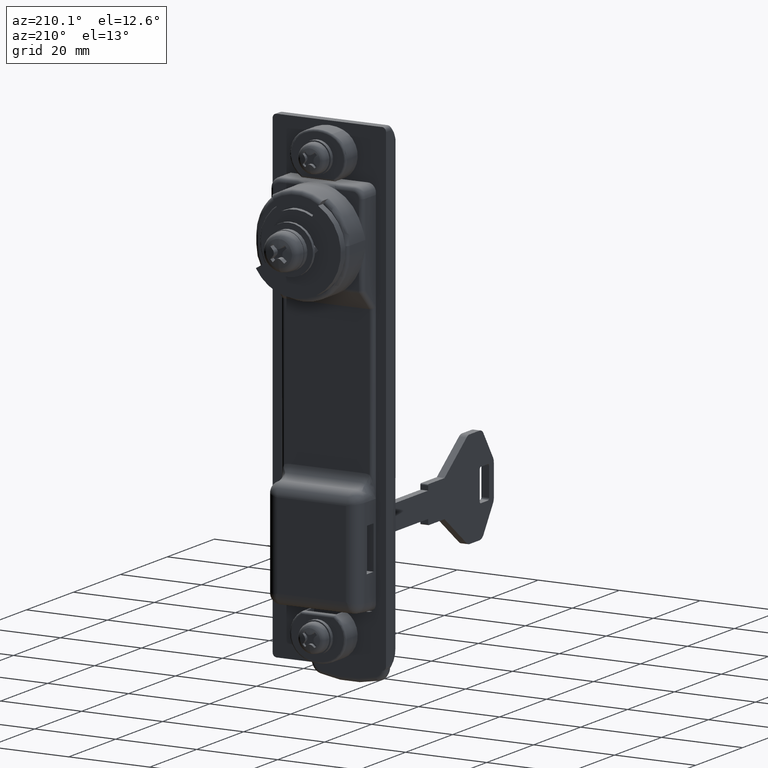
[diagram: clean part render]
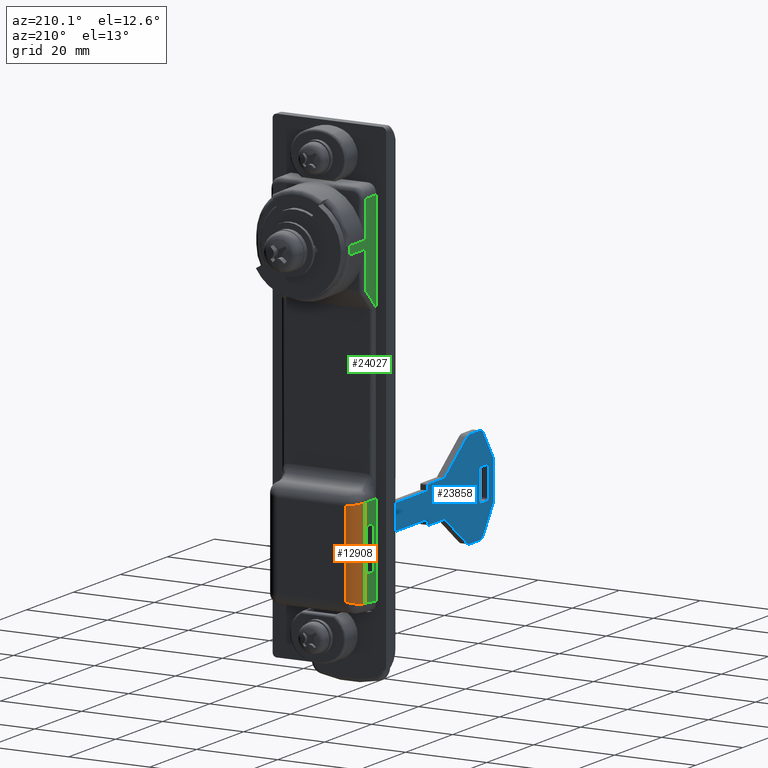
[diagram: same view with three faces highlighted in distinct colors, each labeled with its STEP entity id]
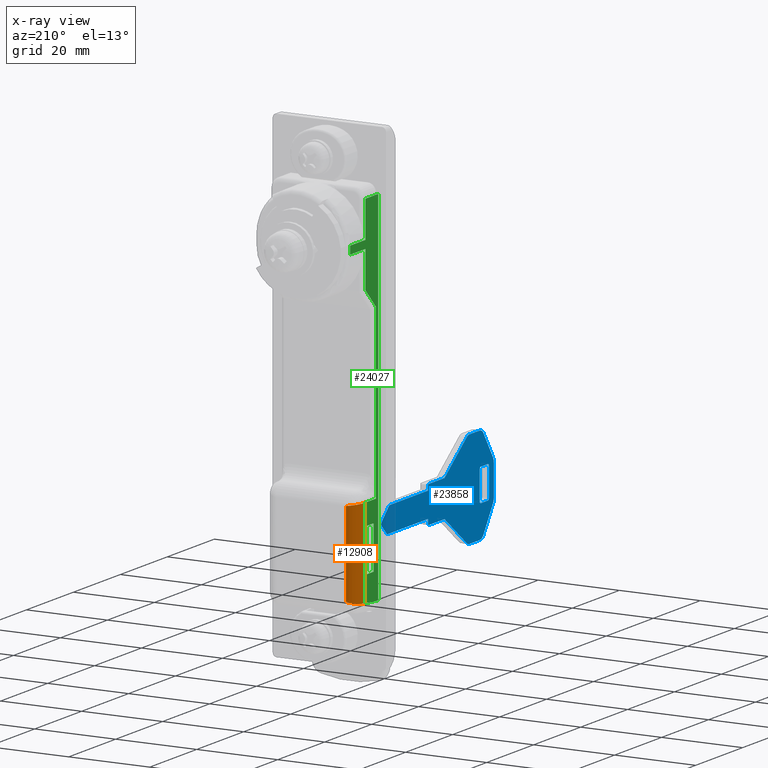
[diagram: x-ray of the same camera — body ghosted, the three highlighted faces saturated]
A machine part, auxiliary view with three faces highlighted in distinct colors.
The next image is the same camera in x-ray (body ghosted, the three faces saturated) — at least one of them is partly hidden behind the body in this view.
Their STEP definitions:

[orange] entity #12908 — the highlighted cylindrical surface (edge-blend (fillet) strip) has radius 3 mm, axis along (0, 0, 1).
#1260 = CARTESIAN_POINT ( 'NONE',  ( -11.89999999999919900, 11.50000000000000000, -78.50834350564979000 ) ) ;
#1261 = DIRECTION ( 'NONE',  ( 0.0000000000000000000, 0.0000000000000000000, -1.000000000000000000 ) ) ;
#1262 = VECTOR ( 'NONE', #1261, 1000.000000000000000 ) ;
#1263 = CARTESIAN_POINT ( 'NONE',  ( -11.89999999999919900, 11.50000000000000000, -78.11376319190559100 ) ) ;
#1264 = LINE ( 'NONE', #1263, #1262 ) ;
#4638 = CARTESIAN_POINT ( 'NONE',  ( -11.56369426751513900, 11.48109014528209900, -78.50204049243700400 ) ) ;
#4639 = CARTESIAN_POINT ( 'NONE',  ( -9.969165693327259000, 11.30120658793395300, -78.47205989954567000 ) ) ;
#4640 = CARTESIAN_POINT ( 'NONE',  ( -8.899999999999201000, 10.10464309679936800, -78.27263265102324400 ) ) ;
#4641 = CARTESIAN_POINT ( 'NONE',  ( -8.899999999999209900, 8.500000000000000000, -78.00519213488999500 ) ) ;
#4642 =( BOUNDED_CURVE ( )  B_SPLINE_CURVE ( 3, ( #4641, #4640, #4639, #4638 ),
 .UNSPECIFIED., .F., .F. ) 
 B_SPLINE_CURVE_WITH_KNOTS ( ( 4, 4 ),
 ( 1.570796326794896600, 3.029254610530060200 ),
 .UNSPECIFIED. ) 
 CURVE ( )  GEOMETRIC_REPRESENTATION_ITEM ( )  RATIONAL_B_SPLINE_CURVE ( ( 1.000000000000000000, 0.8304588285171777800, 0.8304588285171777800, 1.000000000000000000 ) ) 
 REPRESENTATION_ITEM ( '' )  );
#4774 = CARTESIAN_POINT ( 'NONE',  ( -8.899999999999201000, 10.25735931288071400, -56.70710678117523400 ) ) ;
#4775 = DIRECTION ( 'NONE',  ( 1.000000000000000000, 0.0000000000000000000, 0.0000000000000000000 ) ) ;
#4776 = DIRECTION ( 'NONE',  ( 0.0000000000000000000, 0.0000000000000000000, 1.000000000000000000 ) ) ;
#4777 = CARTESIAN_POINT ( 'NONE',  ( -11.89999999999919900, 8.500000000000000000, -80.64124254995789400 ) ) ;
#4778 = AXIS2_PLACEMENT_3D ( 'NONE', #4777, #4776, #4775 ) ;
#4784 = CYLINDRICAL_SURFACE ( 'NONE', #4778, 2.999999999999999100 ) ;
#4785 = FACE_OUTER_BOUND ( 'NONE', #12909, .T. ) ;
#4852 = CARTESIAN_POINT ( 'NONE',  ( -8.899999999999209900, 8.500000000000000000, -56.99999999998869500 ) ) ;
#4853 = CARTESIAN_POINT ( 'NONE',  ( -11.89999999999919900, 11.50000000000000000, -56.49999999998869500 ) ) ;
#4854 = CARTESIAN_POINT ( 'NONE',  ( -10.14264068711848700, 11.50000000000000200, -56.49999999998868800 ) ) ;
#5409 =( BOUNDED_CURVE ( )  B_SPLINE_CURVE ( 3, ( #4852, #4774, #4854, #4853 ),
 .UNSPECIFIED., .F., .T. ) 
 B_SPLINE_CURVE_WITH_KNOTS ( ( 4, 4 ),
 ( 1.570796326794896600, 3.141592653589793100 ),
 .UNSPECIFIED. ) 
 CURVE ( )  GEOMETRIC_REPRESENTATION_ITEM ( )  RATIONAL_B_SPLINE_CURVE ( ( 1.000000000000000000, 0.8047378541243649400, 0.8047378541243649400, 1.000000000000000000 ) ) 
 REPRESENTATION_ITEM ( '' )  );
#6579 = CARTESIAN_POINT ( 'NONE',  ( -11.56369426751513900, 11.48109014528209900, -78.50204049243700400 ) ) ;
#9719 = CARTESIAN_POINT ( 'NONE',  ( -11.89999999999919900, 11.50000000000000000, -78.50834350564979000 ) ) ;
#9720 = CARTESIAN_POINT ( 'NONE',  ( -11.78754366453132000, 11.50000000000000000, -78.50624263392940300 ) ) ;
#9721 = CARTESIAN_POINT ( 'NONE',  ( -11.67544175450397000, 11.49369671490378900, -78.50414158737395100 ) ) ;
#9722 = CARTESIAN_POINT ( 'NONE',  ( -11.56369426751513900, 11.48109014528209900, -78.50204049243700400 ) ) ;
#9724 = B_SPLINE_CURVE_WITH_KNOTS ( 'NONE', 3,
 ( #9722, #9721, #9720, #9719 ),
 .UNSPECIFIED., .F., .F.,
 ( 4, 4 ),
 ( 0.0000000000000000000, 0.0003368959131284507600 ),
 .UNSPECIFIED. ) ;
#11850 = VERTEX_POINT ( 'NONE', #16830 ) ;
#11941 = EDGE_CURVE ( 'NONE', #11850, #11942, #17075, .T. ) ;
#11942 = VERTEX_POINT ( 'NONE', #17071 ) ;
#12908 = ADVANCED_FACE ( 'NONE', ( #4785 ), #4784, .T. ) ;
#12909 = EDGE_LOOP ( 'NONE', ( #12910, #12925, #12926, #12928, #12929 ) ) ;
#12910 = ORIENTED_EDGE ( 'NONE', *, *, #13178, .T. ) ;
#12922 = EDGE_CURVE ( 'NONE', #11850, #13054, #4642, .T. ) ;
#12925 = ORIENTED_EDGE ( 'NONE', *, *, #21143, .F. ) ;
#12926 = ORIENTED_EDGE ( 'NONE', *, *, #12927, .F. ) ;
#12927 = EDGE_CURVE ( 'NONE', #11942, #24047, #5409, .T. ) ;
#12928 = ORIENTED_EDGE ( 'NONE', *, *, #11941, .F. ) ;
#12929 = ORIENTED_EDGE ( 'NONE', *, *, #12922, .T. ) ;
#13054 = VERTEX_POINT ( 'NONE', #6579 ) ;
#13178 = EDGE_CURVE ( 'NONE', #13054, #21144, #9724, .T. ) ;
#16830 = CARTESIAN_POINT ( 'NONE',  ( -8.899999999999209900, 8.500000000000000000, -78.00519213488999500 ) ) ;
#17071 = CARTESIAN_POINT ( 'NONE',  ( -8.899999999999209900, 8.500000000000000000, -56.99999999998869500 ) ) ;
#17072 = DIRECTION ( 'NONE',  ( 0.0000000000000000000, 0.0000000000000000000, 1.000000000000000000 ) ) ;
#17073 = VECTOR ( 'NONE', #17072, 1000.000000000000000 ) ;
#17074 = CARTESIAN_POINT ( 'NONE',  ( -8.899999999999209900, 8.500000000000000000, -56.49999999998869500 ) ) ;
#17075 = LINE ( 'NONE', #17074, #17073 ) ;
#21143 = EDGE_CURVE ( 'NONE', #24047, #21144, #1264, .T. ) ;
#21144 = VERTEX_POINT ( 'NONE', #1260 ) ;
#24047 = VERTEX_POINT ( 'NONE', #27951 ) ;
#27951 = CARTESIAN_POINT ( 'NONE',  ( -11.89999999999919900, 11.50000000000000000, -56.49999999998869500 ) ) ;

[blue] entity #23858 — the highlighted planar face has unit normal (-1, 0, 0).
#235 = DIRECTION ( 'NONE',  ( 0.0000000000000000000, 0.0000000000000000000, 1.000000000000000000 ) ) ;
#388 = CARTESIAN_POINT ( 'NONE',  ( -78.91217333605570200, 0.9500000000001169700, -85.50000000001450900 ) ) ;
#389 = DIRECTION ( 'NONE',  ( 0.0000000000000000000, 0.0000000000000000000, 1.000000000000000000 ) ) ;
#390 = DIRECTION ( 'NONE',  ( 0.0000000000000000000, -1.000000000000000000, 0.0000000000000000000 ) ) ;
#391 = CARTESIAN_POINT ( 'NONE',  ( -78.41217333605570200, 0.9500000000001169700, -85.50000000001450900 ) ) ;
#392 = AXIS2_PLACEMENT_3D ( 'NONE', #391, #390, #389 ) ;
#393 = CIRCLE ( 'NONE', #392, 0.5000000000000004400 ) ;
#394 = LINE ( 'NONE', #455, #454 ) ;
#452 = CARTESIAN_POINT ( 'NONE',  ( -78.91217333605570200, 0.9500000000001169700, -92.50000000001469400 ) ) ;
#453 = DIRECTION ( 'NONE',  ( 0.0000000000000000000, 0.0000000000000000000, -1.000000000000000000 ) ) ;
#454 = VECTOR ( 'NONE', #453, 1000.000000000000000 ) ;
#455 = CARTESIAN_POINT ( 'NONE',  ( -78.91217333605570200, 0.9500000000001169700, -85.50000000001450900 ) ) ;
#553 = CARTESIAN_POINT ( 'NONE',  ( -69.37884000272239900, 0.9500000000001169700, -77.40000000001478500 ) ) ;
#554 = DIRECTION ( 'NONE',  ( 0.8000000000000000400, 0.0000000000000000000, -0.5999999999999999800 ) ) ;
#555 = VECTOR ( 'NONE', #554, 1000.000000000000000 ) ;
#556 = CARTESIAN_POINT ( 'NONE',  ( -69.37884000272249800, 0.9500000000001169700, -77.40000000001450100 ) ) ;
#557 = LINE ( 'NONE', #556, #555 ) ;
#573 = DIRECTION ( 'NONE',  ( 0.0000000000000000000, 0.0000000000000000000, 1.000000000000000000 ) ) ;
#574 = VECTOR ( 'NONE', #573, 1000.000000000000000 ) ;
#575 = CARTESIAN_POINT ( 'NONE',  ( -74.91217333605588600, 0.9500000000001169700, -92.50000000001449500 ) ) ;
#576 = LINE ( 'NONE', #575, #574 ) ;
#577 = CARTESIAN_POINT ( 'NONE',  ( -74.91217333605588600, 0.9500000000001169700, -85.50000000001460900 ) ) ;
#617 = CARTESIAN_POINT ( 'NONE',  ( -59.91217333605600000, 0.9500000000001169700, -84.50000000001460900 ) ) ;
#623 = CARTESIAN_POINT ( 'NONE',  ( -52.91217333605599300, 0.9500000000001169700, -85.90000000001460000 ) ) ;
#624 = DIRECTION ( 'NONE',  ( 0.0000000000000000000, 0.0000000000000000000, -1.000000000000000000 ) ) ;
#625 = VECTOR ( 'NONE', #624, 1000.000000000000000 ) ;
#626 = CARTESIAN_POINT ( 'NONE',  ( -52.91217333605599300, 0.9500000000001169700, -84.80000000001450600 ) ) ;
#627 = LINE ( 'NONE', #626, #625 ) ;
#628 = CARTESIAN_POINT ( 'NONE',  ( -53.21217333605569900, 0.9500000000001169700, -93.50000000001469400 ) ) ;
#679 = CARTESIAN_POINT ( 'NONE',  ( -78.41217333605580100, 0.9500000000001169700, -93.00000000001469400 ) ) ;
#680 = DIRECTION ( 'NONE',  ( 0.0000000000000000000, 0.0000000000000000000, 1.000000000000000000 ) ) ;
#681 = DIRECTION ( 'NONE',  ( 0.0000000000000000000, -1.000000000000000000, 0.0000000000000000000 ) ) ;
#682 = CARTESIAN_POINT ( 'NONE',  ( -78.41217333605580100, 0.9500000000001169700, -92.50000000001469400 ) ) ;
#683 = AXIS2_PLACEMENT_3D ( 'NONE', #682, #681, #680 ) ;
#684 = CIRCLE ( 'NONE', #683, 0.5000000000000004400 ) ;
#699 = CARTESIAN_POINT ( 'NONE',  ( -78.41217333605570200, 0.9500000000001169700, -85.00000000001450900 ) ) ;
#700 = CARTESIAN_POINT ( 'NONE',  ( -75.41217333605578700, 0.9500000000001169700, -85.00000000001479300 ) ) ;
#701 = DIRECTION ( 'NONE',  ( -1.000000000000000000, 0.0000000000000000000, 0.0000000000000000000 ) ) ;
#702 = VECTOR ( 'NONE', #701, 1000.000000000000000 ) ;
#703 = CARTESIAN_POINT ( 'NONE',  ( -75.41217333605578700, 0.9500000000001169700, -85.00000000001450900 ) ) ;
#704 = LINE ( 'NONE', #703, #702 ) ;
#723 = CARTESIAN_POINT ( 'NONE',  ( -75.41217333605578700, 0.9500000000001169700, -93.00000000001441000 ) ) ;
#724 = DIRECTION ( 'NONE',  ( 1.000000000000000000, 0.0000000000000000000, 0.0000000000000000000 ) ) ;
#725 = VECTOR ( 'NONE', #724, 1000.000000000000000 ) ;
#726 = CARTESIAN_POINT ( 'NONE',  ( -78.41217333605580100, 0.9500000000001169700, -93.00000000001441000 ) ) ;
#727 = LINE ( 'NONE', #726, #725 ) ;
#767 = CARTESIAN_POINT ( 'NONE',  ( -74.91217333605578700, 0.9500000000001169700, -92.50000000001469400 ) ) ;
#768 = DIRECTION ( 'NONE',  ( 0.0000000000000000000, 0.0000000000000000000, 1.000000000000000000 ) ) ;
#769 = DIRECTION ( 'NONE',  ( 0.0000000000000000000, -1.000000000000000000, 0.0000000000000000000 ) ) ;
#770 = CARTESIAN_POINT ( 'NONE',  ( -75.41217333605578700, 0.9500000000001169700, -92.50000000001469400 ) ) ;
#771 = AXIS2_PLACEMENT_3D ( 'NONE', #770, #769, #768 ) ;
#772 = CIRCLE ( 'NONE', #771, 0.5000000000000004400 ) ;
#773 = CARTESIAN_POINT ( 'NONE',  ( -52.91217333605599300, 0.9500000000001169700, -92.10000000001460300 ) ) ;
#774 = DIRECTION ( 'NONE',  ( -1.000000000000000000, 0.0000000000000000000, 0.0000000000000000000 ) ) ;
#775 = VECTOR ( 'NONE', #774, 1000.000000000000000 ) ;
#776 = CARTESIAN_POINT ( 'NONE',  ( -35.41217333605600000, 0.9500000000001169700, -92.10000000001460300 ) ) ;
#777 = LINE ( 'NONE', #776, #775 ) ;
#793 = DIRECTION ( 'NONE',  ( 0.0000000000000000000, 0.0000000000000000000, 1.000000000000000000 ) ) ;
#794 = DIRECTION ( 'NONE',  ( 0.0000000000000000000, -1.000000000000000000, 0.0000000000000000000 ) ) ;
#795 = CARTESIAN_POINT ( 'NONE',  ( -53.21217333605569900, 0.9500000000001169700, -93.20000000001469700 ) ) ;
#796 = AXIS2_PLACEMENT_3D ( 'NONE', #795, #794, #793 ) ;
#797 = CIRCLE ( 'NONE', #796, 0.2999999999999947200 ) ;
#821 = CARTESIAN_POINT ( 'NONE',  ( -53.21217333605589800, 0.9500000000001169700, -84.50000000001460900 ) ) ;
#822 = CARTESIAN_POINT ( 'NONE',  ( -36.41217333605600000, 0.9500000000001169700, -85.90000000001460000 ) ) ;
#823 = DIRECTION ( 'NONE',  ( 1.000000000000000000, 0.0000000000000000000, 0.0000000000000000000 ) ) ;
#824 = VECTOR ( 'NONE', #823, 1000.000000000000000 ) ;
#825 = CARTESIAN_POINT ( 'NONE',  ( -52.91217333605599300, 0.9500000000001169700, -85.90000000001460000 ) ) ;
#826 = LINE ( 'NONE', #825, #824 ) ;
#838 = CARTESIAN_POINT ( 'NONE',  ( -35.41217333605600000, 0.9500000000001169700, -92.10000000001470300 ) ) ;
#839 = DIRECTION ( 'NONE',  ( -0.7081752958666433000, 0.0000000000000000000, -0.7060366494199803400 ) ) ;
#840 = VECTOR ( 'NONE', #839, 1000.000000000000000 ) ;
#841 = CARTESIAN_POINT ( 'NONE',  ( -33.05915501134605000, 0.9500000000001169700, -89.75408764794801200 ) ) ;
#842 = LINE ( 'NONE', #841, #840 ) ;
#859 = DIRECTION ( 'NONE',  ( 0.0000000000000000000, 0.0000000000000000000, 1.000000000000000000 ) ) ;
#860 = DIRECTION ( 'NONE',  ( 0.0000000000000000000, -1.000000000000000000, 0.0000000000000000000 ) ) ;
#861 = CARTESIAN_POINT ( 'NONE',  ( -33.41217333605580100, 0.9500000000001169700, -89.40000000001458600 ) ) ;
#862 = AXIS2_PLACEMENT_3D ( 'NONE', #861, #860, #859 ) ;
#863 = CIRCLE ( 'NONE', #862, 0.5000000000000004400 ) ;
#864 = CARTESIAN_POINT ( 'NONE',  ( -33.05915501134585100, 0.9500000000001169700, -89.75408764794789800 ) ) ;
#877 = CARTESIAN_POINT ( 'NONE',  ( -52.91217333605569500, 0.9500000000001169700, -84.80000000001469100 ) ) ;
#878 = DIRECTION ( 'NONE',  ( 0.0000000000000000000, 0.0000000000000000000, 1.000000000000000000 ) ) ;
#879 = DIRECTION ( 'NONE',  ( 0.0000000000000000000, -1.000000000000000000, 0.0000000000000000000 ) ) ;
#880 = CARTESIAN_POINT ( 'NONE',  ( -53.21217333605569900, 0.9500000000001169700, -84.80000000001469100 ) ) ;
#881 = AXIS2_PLACEMENT_3D ( 'NONE', #880, #879, #878 ) ;
#882 = CIRCLE ( 'NONE', #881, 0.2999999999999947200 ) ;
#897 = DIRECTION ( 'NONE',  ( 1.000000000000000000, 0.0000000000000000000, 0.0000000000000000000 ) ) ;
#898 = VECTOR ( 'NONE', #897, 1000.000000000000000 ) ;
#899 = CARTESIAN_POINT ( 'NONE',  ( -59.91217333605600000, 0.9500000000001169700, -84.50000000001460900 ) ) ;
#900 = LINE ( 'NONE', #899, #898 ) ;
#913 = CARTESIAN_POINT ( 'NONE',  ( -52.91217333605599300, 0.9500000000001169700, -93.20000000001459700 ) ) ;
#914 = DIRECTION ( 'NONE',  ( 0.0000000000000000000, 0.0000000000000000000, -1.000000000000000000 ) ) ;
#915 = VECTOR ( 'NONE', #914, 1000.000000000000000 ) ;
#916 = CARTESIAN_POINT ( 'NONE',  ( -52.91217333605599300, 0.9500000000001169700, -92.10000000001460300 ) ) ;
#917 = LINE ( 'NONE', #916, #915 ) ;
#950 = CARTESIAN_POINT ( 'NONE',  ( -33.07007886705964900, 0.9500000000001169700, -89.03534759801789300 ) ) ;
#951 = DIRECTION ( 'NONE',  ( 0.7293048039937597400, 0.0000000000000000000, -0.6841889379927328400 ) ) ;
#952 = VECTOR ( 'NONE', #951, 1000.000000000000100 ) ;
#953 = CARTESIAN_POINT ( 'NONE',  ( -36.41217333605600000, 0.9500000000001169700, -85.90000000001470000 ) ) ;
#954 = LINE ( 'NONE', #953, #952 ) ;
#14055 = VERTEX_POINT ( 'NONE', #22647 ) ;
#14159 = EDGE_CURVE ( 'NONE', #14390, #14160, #21755, .T. ) ;
#14160 = VERTEX_POINT ( 'NONE', #21763 ) ;
#14166 = EDGE_CURVE ( 'NONE', #16508, #14167, #21792, .T. ) ;
#14167 = VERTEX_POINT ( 'NONE', #21796 ) ;
#14185 = EDGE_CURVE ( 'NONE', #14186, #14189, #21825, .T. ) ;
#14186 = VERTEX_POINT ( 'NONE', #21817 ) ;
#14187 = EDGE_CURVE ( 'NONE', #14167, #14189, #21822, .T. ) ;
#14189 = VERTEX_POINT ( 'NONE', #21862 ) ;
#14202 = EDGE_CURVE ( 'NONE', #14055, #14203, #21848, .T. ) ;
#14203 = VERTEX_POINT ( 'NONE', #21859 ) ;
#14233 = EDGE_CURVE ( 'NONE', #14390, #14203, #21925, .T. ) ;
#14243 = EDGE_CURVE ( 'NONE', #14186, #14244, #21900, .T. ) ;
#14244 = VERTEX_POINT ( 'NONE', #22004 ) ;
#14259 = EDGE_CURVE ( 'NONE', #14275, #14260, #21982, .T. ) ;
#14260 = VERTEX_POINT ( 'NONE', #21978 ) ;
#14274 = EDGE_CURVE ( 'NONE', #14275, #14160, #21877, .T. ) ;
#14275 = VERTEX_POINT ( 'NONE', #21964 ) ;
#14288 = EDGE_CURVE ( 'NONE', #14055, #14244, #21958, .T. ) ;
#14390 = VERTEX_POINT ( 'NONE', #22203 ) ;
#16310 = EDGE_CURVE ( 'NONE', #16542, #16311, #393, .T. ) ;
#16311 = VERTEX_POINT ( 'NONE', #388 ) ;
#16367 = EDGE_CURVE ( 'NONE', #16311, #16368, #394, .T. ) ;
#16368 = VERTEX_POINT ( 'NONE', #452 ) ;
#16471 = VERTEX_POINT ( 'NONE', #577 ) ;
#16473 = EDGE_CURVE ( 'NONE', #16577, #16471, #576, .T. ) ;
#16484 = EDGE_CURVE ( 'NONE', #16485, #16486, #557, .T. ) ;
#16485 = VERTEX_POINT ( 'NONE', #553 ) ;
#16486 = VERTEX_POINT ( 'NONE', #617 ) ;
#16508 = VERTEX_POINT ( 'NONE', #628 ) ;
#16510 = EDGE_CURVE ( 'NONE', #16784, #16511, #627, .T. ) ;
#16511 = VERTEX_POINT ( 'NONE', #623 ) ;
#16540 = EDGE_CURVE ( 'NONE', #16541, #16542, #704, .T. ) ;
#16541 = VERTEX_POINT ( 'NONE', #700 ) ;
#16542 = VERTEX_POINT ( 'NONE', #699 ) ;
#16551 = EDGE_CURVE ( 'NONE', #16368, #16552, #684, .T. ) ;
#16552 = VERTEX_POINT ( 'NONE', #679 ) ;
#16562 = EDGE_CURVE ( 'NONE', #16552, #16566, #727, .T. ) ;
#16566 = VERTEX_POINT ( 'NONE', #723 ) ;
#16576 = EDGE_CURVE ( 'NONE', #16566, #16577, #772, .T. ) ;
#16577 = VERTEX_POINT ( 'NONE', #767 ) ;
#16650 = EDGE_CURVE ( 'NONE', #16508, #16800, #797, .T. ) ;
#16710 = EDGE_CURVE ( 'NONE', #16767, #16711, #777, .T. ) ;
#16711 = VERTEX_POINT ( 'NONE', #773 ) ;
#16723 = EDGE_CURVE ( 'NONE', #16511, #16724, #826, .T. ) ;
#16724 = VERTEX_POINT ( 'NONE', #822 ) ;
#16725 = VERTEX_POINT ( 'NONE', #821 ) ;
#16754 = VERTEX_POINT ( 'NONE', #864 ) ;
#16756 = EDGE_CURVE ( 'NONE', #16754, #16812, #863, .T. ) ;
#16766 = EDGE_CURVE ( 'NONE', #16754, #16767, #842, .T. ) ;
#16767 = VERTEX_POINT ( 'NONE', #838 ) ;
#16771 = EDGE_CURVE ( 'NONE', #16486, #16725, #900, .T. ) ;
#16783 = EDGE_CURVE ( 'NONE', #16784, #16725, #882, .T. ) ;
#16784 = VERTEX_POINT ( 'NONE', #877 ) ;
#16799 = EDGE_CURVE ( 'NONE', #16711, #16800, #917, .T. ) ;
#16800 = VERTEX_POINT ( 'NONE', #913 ) ;
#16811 = EDGE_CURVE ( 'NONE', #16724, #16812, #954, .T. ) ;
#16812 = VERTEX_POINT ( 'NONE', #950 ) ;
#21726 = VECTOR ( 'NONE', #21752, 1000.000000000000000 ) ;
#21752 = DIRECTION ( 'NONE',  ( 0.0000000000000000000, 0.0000000000000000000, 1.000000000000000000 ) ) ;
#21754 = CARTESIAN_POINT ( 'NONE',  ( -80.91217333605570200, 0.9500000000001169700, -92.89444872455041500 ) ) ;
#21755 = LINE ( 'NONE', #21754, #21726 ) ;
#21763 = CARTESIAN_POINT ( 'NONE',  ( -80.91217333605570200, 0.9500000000001169700, -85.10555127547871700 ) ) ;
#21789 = DIRECTION ( 'NONE',  ( -1.000000000000000000, 0.0000000000000000000, 0.0000000000000000000 ) ) ;
#21790 = VECTOR ( 'NONE', #21789, 1000.000000000000000 ) ;
#21791 = CARTESIAN_POINT ( 'NONE',  ( -53.21217333605589800, 0.9500000000001169700, -93.50000000001449500 ) ) ;
#21792 = LINE ( 'NONE', #21791, #21790 ) ;
#21796 = CARTESIAN_POINT ( 'NONE',  ( -59.91217333605600000, 0.9500000000001169700, -93.50000000001449500 ) ) ;
#21816 = CARTESIAN_POINT ( 'NONE',  ( -70.57884000272260000, 0.9500000000001169700, -99.00000000001470800 ) ) ;
#21817 = CARTESIAN_POINT ( 'NONE',  ( -70.57884000272260000, 0.9500000000001169700, -101.0000000000146100 ) ) ;
#21819 = DIRECTION ( 'NONE',  ( -0.7999999999999967100, 0.0000000000000000000, -0.6000000000000044200 ) ) ;
#21820 = VECTOR ( 'NONE', #21819, 1000.000000000000000 ) ;
#21821 = CARTESIAN_POINT ( 'NONE',  ( -59.91217333605590800, 0.9500000000001169700, -93.50000000001449500 ) ) ;
#21822 = LINE ( 'NONE', #21821, #21820 ) ;
#21824 = DIRECTION ( 'NONE',  ( -6.938893903907222100E-015, 0.0000000000000000000, 1.000000000000000000 ) ) ;
#21825 = CIRCLE ( 'NONE', #21827, 2.000000000000001800 ) ;
#21826 = DIRECTION ( 'NONE',  ( 0.0000000000000000000, -1.000000000000000000, 0.0000000000000000000 ) ) ;
#21827 = AXIS2_PLACEMENT_3D ( 'NONE', #21816, #21826, #21824 ) ;
#21847 = CARTESIAN_POINT ( 'NONE',  ( -76.50590640775560300, 0.9500000000001169700, -100.1094003924649900 ) ) ;
#21848 = LINE ( 'NONE', #21847, #21861 ) ;
#21859 = CARTESIAN_POINT ( 'NONE',  ( -80.57627392473149500, 0.9500000000001169700, -94.00384911700109600 ) ) ;
#21860 = DIRECTION ( 'NONE',  ( -0.5547001962252209300, 0.0000000000000000000, 0.8320502943378491600 ) ) ;
#21861 = VECTOR ( 'NONE', #21860, 1000.000000000000100 ) ;
#21862 = CARTESIAN_POINT ( 'NONE',  ( -69.37884000272259800, 0.9500000000001169700, -100.6000000000145900 ) ) ;
#21873 = DIRECTION ( 'NONE',  ( 6.938893903907222100E-015, 0.0000000000000000000, 1.000000000000000000 ) ) ;
#21874 = DIRECTION ( 'NONE',  ( 0.0000000000000000000, -1.000000000000000000, 0.0000000000000000000 ) ) ;
#21875 = CARTESIAN_POINT ( 'NONE',  ( -78.91217333605580100, 0.9500000000001169700, -85.10555127547871700 ) ) ;
#21876 = AXIS2_PLACEMENT_3D ( 'NONE', #21875, #21874, #21873 ) ;
#21877 = CIRCLE ( 'NONE', #21876, 2.000000000000001800 ) ;
#21898 = VECTOR ( 'NONE', #22005, 1000.000000000000000 ) ;
#21899 = CARTESIAN_POINT ( 'NONE',  ( -70.57884000272260000, 0.9500000000001169700, -101.0000000000144100 ) ) ;
#21900 = LINE ( 'NONE', #21899, #21898 ) ;
#21917 = DIRECTION ( 'NONE',  ( -6.938893903907222100E-015, 0.0000000000000000000, 1.000000000000000000 ) ) ;
#21918 = DIRECTION ( 'NONE',  ( 0.0000000000000000000, -1.000000000000000000, 0.0000000000000000000 ) ) ;
#21919 = CARTESIAN_POINT ( 'NONE',  ( -78.91217333605580100, 0.9500000000001169700, -92.89444872455041500 ) ) ;
#21920 = AXIS2_PLACEMENT_3D ( 'NONE', #21919, #21918, #21917 ) ;
#21925 = CIRCLE ( 'NONE', #21920, 2.000000000000001800 ) ;
#21958 = CIRCLE ( 'NONE', #21973, 2.000000000000001800 ) ;
#21964 = CARTESIAN_POINT ( 'NONE',  ( -80.57627392473149500, 0.9500000000001169700, -83.99615088302830700 ) ) ;
#21970 = DIRECTION ( 'NONE',  ( 0.0000000000000000000, 0.0000000000000000000, 1.000000000000000000 ) ) ;
#21971 = DIRECTION ( 'NONE',  ( 0.0000000000000000000, -1.000000000000000000, 0.0000000000000000000 ) ) ;
#21972 = CARTESIAN_POINT ( 'NONE',  ( -74.84180581907978100, 0.9500000000001169700, -99.00000000001470800 ) ) ;
#21973 = AXIS2_PLACEMENT_3D ( 'NONE', #21972, #21971, #21970 ) ;
#21978 = CARTESIAN_POINT ( 'NONE',  ( -76.50590640775560300, 0.9500000000001169700, -77.89059960756409900 ) ) ;
#21979 = DIRECTION ( 'NONE',  ( 0.5547001962252288100, 0.0000000000000000000, 0.8320502943378438300 ) ) ;
#21980 = VECTOR ( 'NONE', #21979, 1000.000000000000200 ) ;
#21981 = CARTESIAN_POINT ( 'NONE',  ( -80.57627392473149500, 0.9500000000001169700, -83.99615088302800800 ) ) ;
#21982 = LINE ( 'NONE', #21981, #21980 ) ;
#22004 = CARTESIAN_POINT ( 'NONE',  ( -74.84180581907999400, 0.9500000000001169700, -101.0000000000144100 ) ) ;
#22005 = DIRECTION ( 'NONE',  ( -1.000000000000000000, 0.0000000000000000000, 0.0000000000000000000 ) ) ;
#22203 = CARTESIAN_POINT ( 'NONE',  ( -80.91217333605580100, 0.9500000000001169700, -92.89444872455041500 ) ) ;
#22647 = CARTESIAN_POINT ( 'NONE',  ( -76.50590640775550400, 0.9500000000001169700, -100.1094003924652000 ) ) ;
#23703 = ORIENTED_EDGE ( 'NONE', *, *, #14166, .T. ) ;
#23704 = ORIENTED_EDGE ( 'NONE', *, *, #14187, .T. ) ;
#23705 = ORIENTED_EDGE ( 'NONE', *, *, #14185, .F. ) ;
#23706 = ORIENTED_EDGE ( 'NONE', *, *, #14243, .T. ) ;
#23707 = ORIENTED_EDGE ( 'NONE', *, *, #14288, .F. ) ;
#23708 = ORIENTED_EDGE ( 'NONE', *, *, #14202, .T. ) ;
#23709 = ORIENTED_EDGE ( 'NONE', *, *, #14233, .F. ) ;
#23710 = ORIENTED_EDGE ( 'NONE', *, *, #14159, .T. ) ;
#23711 = ORIENTED_EDGE ( 'NONE', *, *, #14274, .F. ) ;
#23774 = EDGE_CURVE ( 'NONE', #23784, #23832, #27533, .T. ) ;
#23784 = VERTEX_POINT ( 'NONE', #27525 ) ;
#23787 = EDGE_CURVE ( 'NONE', #16471, #16541, #27522, .T. ) ;
#23799 = EDGE_CURVE ( 'NONE', #16485, #23832, #27557, .T. ) ;
#23832 = VERTEX_POINT ( 'NONE', #27595 ) ;
#23848 = ORIENTED_EDGE ( 'NONE', *, *, #16783, .F. ) ;
#23850 = ORIENTED_EDGE ( 'NONE', *, *, #16510, .T. ) ;
#23854 = EDGE_CURVE ( 'NONE', #23784, #14260, #27587, .T. ) ;
#23858 = ADVANCED_FACE ( 'NONE', ( #27582, #27581 ), #27580, .T. ) ;
#23859 = EDGE_LOOP ( 'NONE', ( #23860, #23861, #23848, #23850, #24126, #24098, #24121, #24122, #24123, #24124, #24125, #23703, #23704, #23705, #23706, #23707, #23708, #23709, #23710, #23711, #24007, #24008, #24009, #24010 ) ) ;
#23860 = ORIENTED_EDGE ( 'NONE', *, *, #16484, .T. ) ;
#23861 = ORIENTED_EDGE ( 'NONE', *, *, #16771, .T. ) ;
#24007 = ORIENTED_EDGE ( 'NONE', *, *, #14259, .T. ) ;
#24008 = ORIENTED_EDGE ( 'NONE', *, *, #23854, .F. ) ;
#24009 = ORIENTED_EDGE ( 'NONE', *, *, #23774, .T. ) ;
#24010 = ORIENTED_EDGE ( 'NONE', *, *, #23799, .F. ) ;
#24097 = EDGE_LOOP ( 'NONE', ( #24135, #24136, #24137, #24138, #24101, #24102, #24103, #24104 ) ) ;
#24098 = ORIENTED_EDGE ( 'NONE', *, *, #16811, .T. ) ;
#24101 = ORIENTED_EDGE ( 'NONE', *, *, #16562, .T. ) ;
#24102 = ORIENTED_EDGE ( 'NONE', *, *, #16576, .T. ) ;
#24103 = ORIENTED_EDGE ( 'NONE', *, *, #16473, .T. ) ;
#24104 = ORIENTED_EDGE ( 'NONE', *, *, #23787, .T. ) ;
#24121 = ORIENTED_EDGE ( 'NONE', *, *, #16756, .F. ) ;
#24122 = ORIENTED_EDGE ( 'NONE', *, *, #16766, .T. ) ;
#24123 = ORIENTED_EDGE ( 'NONE', *, *, #16710, .T. ) ;
#24124 = ORIENTED_EDGE ( 'NONE', *, *, #16799, .T. ) ;
#24125 = ORIENTED_EDGE ( 'NONE', *, *, #16650, .F. ) ;
#24126 = ORIENTED_EDGE ( 'NONE', *, *, #16723, .T. ) ;
#24135 = ORIENTED_EDGE ( 'NONE', *, *, #16540, .T. ) ;
#24136 = ORIENTED_EDGE ( 'NONE', *, *, #16310, .T. ) ;
#24137 = ORIENTED_EDGE ( 'NONE', *, *, #16367, .T. ) ;
#24138 = ORIENTED_EDGE ( 'NONE', *, *, #16551, .T. ) ;
#27514 = DIRECTION ( 'NONE',  ( 0.0000000000000000000, -1.000000000000000000, 0.0000000000000000000 ) ) ;
#27515 = CARTESIAN_POINT ( 'NONE',  ( -75.41217333605578700, 0.9500000000001169700, -85.50000000001479300 ) ) ;
#27516 = AXIS2_PLACEMENT_3D ( 'NONE', #27515, #27514, #235 ) ;
#27522 = CIRCLE ( 'NONE', #27516, 0.5000000000000004400 ) ;
#27525 = CARTESIAN_POINT ( 'NONE',  ( -74.84180581907978100, 0.9500000000001169700, -77.00000000001479300 ) ) ;
#27530 = DIRECTION ( 'NONE',  ( 1.000000000000000000, 0.0000000000000000000, 0.0000000000000000000 ) ) ;
#27531 = VECTOR ( 'NONE', #27530, 1000.000000000000000 ) ;
#27532 = CARTESIAN_POINT ( 'NONE',  ( -74.84180581907989400, 0.9500000000001169700, -77.00000000001449500 ) ) ;
#27533 = LINE ( 'NONE', #27532, #27531 ) ;
#27553 = DIRECTION ( 'NONE',  ( 0.0000000000000000000, 0.0000000000000000000, 1.000000000000000000 ) ) ;
#27554 = DIRECTION ( 'NONE',  ( 0.0000000000000000000, -1.000000000000000000, 0.0000000000000000000 ) ) ;
#27555 = CARTESIAN_POINT ( 'NONE',  ( -70.57884000272241600, 0.9500000000001169700, -79.00000000001479300 ) ) ;
#27556 = AXIS2_PLACEMENT_3D ( 'NONE', #27555, #27554, #27553 ) ;
#27557 = CIRCLE ( 'NONE', #27556, 2.000000000000001800 ) ;
#27576 = DIRECTION ( 'NONE',  ( 1.000000000000000000, 0.0000000000000000000, 0.0000000000000000000 ) ) ;
#27577 = DIRECTION ( 'NONE',  ( 0.0000000000000000000, 1.000000000000000000, 0.0000000000000000000 ) ) ;
#27578 = CARTESIAN_POINT ( 'NONE',  ( 0.0000000000000000000, 0.9500000000001019900, 0.0000000000000000000 ) ) ;
#27579 = AXIS2_PLACEMENT_3D ( 'NONE', #27578, #27577, #27576 ) ;
#27580 = PLANE ( 'NONE',  #27579 ) ;
#27581 = FACE_BOUND ( 'NONE', #24097, .T. ) ;
#27582 = FACE_OUTER_BOUND ( 'NONE', #23859, .T. ) ;
#27583 = DIRECTION ( 'NONE',  ( 0.0000000000000000000, 0.0000000000000000000, 1.000000000000000000 ) ) ;
#27584 = DIRECTION ( 'NONE',  ( 0.0000000000000000000, -1.000000000000000000, 0.0000000000000000000 ) ) ;
#27585 = CARTESIAN_POINT ( 'NONE',  ( -74.84180581907978100, 0.9500000000001169700, -79.00000000001479300 ) ) ;
#27586 = AXIS2_PLACEMENT_3D ( 'NONE', #27585, #27584, #27583 ) ;
#27587 = CIRCLE ( 'NONE', #27586, 2.000000000000001800 ) ;
#27595 = CARTESIAN_POINT ( 'NONE',  ( -70.57884000272250100, 0.9500000000001169700, -77.00000000001449500 ) ) ;

[green] entity #24027 — the highlighted planar face has unit normal (-1, 0, 0).
#489 = AXIS2_PLACEMENT_3D ( 'NONE', #742, #745, #1002 ) ;
#494 = CIRCLE ( 'NONE', #489, 79.00000000000000000 ) ;
#742 = CARTESIAN_POINT ( 'NONE',  ( -20.69999999999869900, 11.50000000000000000, -6.991740519879390700E-012 ) ) ;
#745 = DIRECTION ( 'NONE',  ( 0.0000000000000000000, 1.000000000000000000, 0.0000000000000000000 ) ) ;
#1002 = DIRECTION ( 'NONE',  ( 0.0000000000000000000, 0.0000000000000000000, 1.000000000000000000 ) ) ;
#1260 = CARTESIAN_POINT ( 'NONE',  ( -11.89999999999919900, 11.50000000000000000, -78.50834350564979000 ) ) ;
#1261 = DIRECTION ( 'NONE',  ( 0.0000000000000000000, 0.0000000000000000000, -1.000000000000000000 ) ) ;
#1262 = VECTOR ( 'NONE', #1261, 1000.000000000000000 ) ;
#1263 = CARTESIAN_POINT ( 'NONE',  ( -11.89999999999919900, 11.50000000000000000, -78.11376319190559100 ) ) ;
#1264 = LINE ( 'NONE', #1263, #1262 ) ;
#1308 = DIRECTION ( 'NONE',  ( 0.0000000000000000000, 0.0000000000000000000, -1.000000000000000000 ) ) ;
#1309 = VECTOR ( 'NONE', #1308, 1000.000000000000000 ) ;
#1310 = CARTESIAN_POINT ( 'NONE',  ( -11.98421101603910100, 11.50000000000000000, 1.000000000021002100 ) ) ;
#1311 = LINE ( 'NONE', #1310, #1309 ) ;
#1312 = CARTESIAN_POINT ( 'NONE',  ( -11.98421101603910100, 11.50000000000000000, 9.999999999997490000 ) ) ;
#1313 = DIRECTION ( 'NONE',  ( 1.000000000000000000, 0.0000000000000000000, 2.140520017021305000E-013 ) ) ;
#1314 = VECTOR ( 'NONE', #1313, 1000.000000000000000 ) ;
#1315 = CARTESIAN_POINT ( 'NONE',  ( -10.98421101603856100, 11.50000000000000000, 9.999999999997699600 ) ) ;
#1316 = LINE ( 'NONE', #1315, #1314 ) ;
#1317 = CARTESIAN_POINT ( 'NONE',  ( -17.49999999999920100, 11.50000000000000000, 9.999999999996308700 ) ) ;
#1318 = DIRECTION ( 'NONE',  ( 0.0000000000000000000, 0.0000000000000000000, -1.000000000000000000 ) ) ;
#1319 = VECTOR ( 'NONE', #1318, 1000.000000000000000 ) ;
#1320 = CARTESIAN_POINT ( 'NONE',  ( -17.49999999999920100, 11.50000000000000000, 0.0000000000000000000 ) ) ;
#1321 = LINE ( 'NONE', #1320, #1319 ) ;
#1322 = CARTESIAN_POINT ( 'NONE',  ( -17.49999999999920100, 11.50000000000000000, -78.93516326708339600 ) ) ;
#1486 = CARTESIAN_POINT ( 'NONE',  ( -12.59999999999901900, 11.50000000000000000, -61.70000000000170100 ) ) ;
#1487 = DIRECTION ( 'NONE',  ( 0.0000000000000000000, 0.0000000000000000000, 1.000000000000000000 ) ) ;
#1488 = VECTOR ( 'NONE', #1487, 1000.000000000000000 ) ;
#1489 = CARTESIAN_POINT ( 'NONE',  ( -12.59999999999901900, 11.50000000000000000, 0.0000000000000000000 ) ) ;
#1490 = LINE ( 'NONE', #1489, #1488 ) ;
#1491 = CARTESIAN_POINT ( 'NONE',  ( -12.59999999999901900, 11.50000000000000000, -72.30000000000180200 ) ) ;
#1492 = DIRECTION ( 'NONE',  ( 1.000000000000000000, 0.0000000000000000000, 0.0000000000000000000 ) ) ;
#1493 = VECTOR ( 'NONE', #1492, 1000.000000000000000 ) ;
#1494 = CARTESIAN_POINT ( 'NONE',  ( 0.0000000000000000000, 11.50000000000000000, -72.30000000000180200 ) ) ;
#1495 = LINE ( 'NONE', #1494, #1493 ) ;
#1535 = CARTESIAN_POINT ( 'NONE',  ( -5.499999999999169600, 11.50000000000000000, -0.9999999999791980800 ) ) ;
#1536 = DIRECTION ( 'NONE',  ( 0.0000000000000000000, 0.0000000000000000000, -1.000000000000000000 ) ) ;
#1537 = VECTOR ( 'NONE', #1536, 1000.000000000000000 ) ;
#1538 = CARTESIAN_POINT ( 'NONE',  ( -5.499999999999199800, 11.50000000000000000, -0.9999999999791980800 ) ) ;
#1539 = LINE ( 'NONE', #1538, #1537 ) ;
#1540 = CARTESIAN_POINT ( 'NONE',  ( -5.499999999999169600, 11.50000000000000000, 1.000000000021004100 ) ) ;
#1541 = CARTESIAN_POINT ( 'NONE',  ( -11.98421101603908100, 11.50000000000000000, 1.000000000021004100 ) ) ;
#1542 = DIRECTION ( 'NONE',  ( 1.000000000000000000, 0.0000000000000000000, 0.0000000000000000000 ) ) ;
#1543 = VECTOR ( 'NONE', #1542, 1000.000000000000000 ) ;
#1544 = CARTESIAN_POINT ( 'NONE',  ( -1002.300000000000000, 11.50000000000000000, 1.000000000021004100 ) ) ;
#1545 = LINE ( 'NONE', #1544, #1543 ) ;
#1546 = DIRECTION ( 'NONE',  ( -1.000000000000000000, 0.0000000000000000000, 0.0000000000000000000 ) ) ;
#1547 = VECTOR ( 'NONE', #1546, 1000.000000000000000 ) ;
#1548 = CARTESIAN_POINT ( 'NONE',  ( 0.0000000000000000000, 11.50000000000000000, -61.70000000000170100 ) ) ;
#1549 = LINE ( 'NONE', #1548, #1547 ) ;
#21142 = ORIENTED_EDGE ( 'NONE', *, *, #21143, .T. ) ;
#21143 = EDGE_CURVE ( 'NONE', #24047, #21144, #1264, .T. ) ;
#21144 = VERTEX_POINT ( 'NONE', #1260 ) ;
#21145 = ORIENTED_EDGE ( 'NONE', *, *, #21146, .T. ) ;
#21146 = EDGE_CURVE ( 'NONE', #21144, #21147, #494, .T. ) ;
#21147 = VERTEX_POINT ( 'NONE', #1322 ) ;
#21148 = ORIENTED_EDGE ( 'NONE', *, *, #21149, .F. ) ;
#21149 = EDGE_CURVE ( 'NONE', #21150, #21147, #1321, .T. ) ;
#21150 = VERTEX_POINT ( 'NONE', #1317 ) ;
#21151 = ORIENTED_EDGE ( 'NONE', *, *, #21152, .T. ) ;
#21152 = EDGE_CURVE ( 'NONE', #21150, #21153, #1316, .T. ) ;
#21153 = VERTEX_POINT ( 'NONE', #1312 ) ;
#21154 = ORIENTED_EDGE ( 'NONE', *, *, #21155, .T. ) ;
#21155 = EDGE_CURVE ( 'NONE', #21153, #21264, #1311, .T. ) ;
#21254 = EDGE_CURVE ( 'NONE', #23931, #21255, #1495, .T. ) ;
#21255 = VERTEX_POINT ( 'NONE', #1491 ) ;
#21256 = ORIENTED_EDGE ( 'NONE', *, *, #21257, .T. ) ;
#21257 = EDGE_CURVE ( 'NONE', #21255, #21258, #1490, .T. ) ;
#21258 = VERTEX_POINT ( 'NONE', #1486 ) ;
#21259 = ORIENTED_EDGE ( 'NONE', *, *, #21260, .T. ) ;
#21260 = EDGE_CURVE ( 'NONE', #21258, #23930, #1549, .T. ) ;
#21261 = EDGE_LOOP ( 'NONE', ( #21262, #21266, #21269, #24036, #24039, #24042, #24045, #21142, #21145, #21148, #21151, #21154 ) ) ;
#21262 = ORIENTED_EDGE ( 'NONE', *, *, #21263, .T. ) ;
#21263 = EDGE_CURVE ( 'NONE', #21264, #21265, #1545, .T. ) ;
#21264 = VERTEX_POINT ( 'NONE', #1541 ) ;
#21265 = VERTEX_POINT ( 'NONE', #1540 ) ;
#21266 = ORIENTED_EDGE ( 'NONE', *, *, #21267, .T. ) ;
#21267 = EDGE_CURVE ( 'NONE', #21265, #21268, #1539, .T. ) ;
#21268 = VERTEX_POINT ( 'NONE', #1535 ) ;
#21269 = ORIENTED_EDGE ( 'NONE', *, *, #24034, .F. ) ;
#23929 = EDGE_CURVE ( 'NONE', #23930, #23931, #27682, .T. ) ;
#23930 = VERTEX_POINT ( 'NONE', #27678 ) ;
#23931 = VERTEX_POINT ( 'NONE', #27677 ) ;
#23932 = ORIENTED_EDGE ( 'NONE', *, *, #21254, .T. ) ;
#24027 = ADVANCED_FACE ( 'NONE', ( #27930, #27929 ), #27928, .T. ) ;
#24028 = EDGE_LOOP ( 'NONE', ( #24029, #23932, #21256, #21259 ) ) ;
#24029 = ORIENTED_EDGE ( 'NONE', *, *, #23929, .T. ) ;
#24034 = EDGE_CURVE ( 'NONE', #24035, #21268, #27917, .T. ) ;
#24035 = VERTEX_POINT ( 'NONE', #27903 ) ;
#24036 = ORIENTED_EDGE ( 'NONE', *, *, #24037, .T. ) ;
#24037 = EDGE_CURVE ( 'NONE', #24035, #24038, #27902, .T. ) ;
#24038 = VERTEX_POINT ( 'NONE', #27966 ) ;
#24039 = ORIENTED_EDGE ( 'NONE', *, *, #24040, .T. ) ;
#24040 = EDGE_CURVE ( 'NONE', #24038, #24041, #27965, .T. ) ;
#24041 = VERTEX_POINT ( 'NONE', #27961 ) ;
#24042 = ORIENTED_EDGE ( 'NONE', *, *, #24043, .T. ) ;
#24043 = EDGE_CURVE ( 'NONE', #24041, #24044, #27959, .T. ) ;
#24044 = VERTEX_POINT ( 'NONE', #27955 ) ;
#24045 = ORIENTED_EDGE ( 'NONE', *, *, #24046, .T. ) ;
#24046 = EDGE_CURVE ( 'NONE', #24044, #24047, #27960, .T. ) ;
#24047 = VERTEX_POINT ( 'NONE', #27951 ) ;
#27677 = CARTESIAN_POINT ( 'NONE',  ( -15.49999999999910100, 11.50000000000000000, -72.30000000000180200 ) ) ;
#27678 = CARTESIAN_POINT ( 'NONE',  ( -15.49999999999910100, 11.50000000000000000, -61.70000000000170100 ) ) ;
#27679 = DIRECTION ( 'NONE',  ( 0.0000000000000000000, 0.0000000000000000000, -1.000000000000000000 ) ) ;
#27680 = VECTOR ( 'NONE', #27679, 1000.000000000000000 ) ;
#27681 = CARTESIAN_POINT ( 'NONE',  ( -15.49999999999910100, 11.50000000000000000, 0.0000000000000000000 ) ) ;
#27682 = LINE ( 'NONE', #27681, #27680 ) ;
#27899 = DIRECTION ( 'NONE',  ( 0.0000000000000000000, 0.0000000000000000000, -1.000000000000000000 ) ) ;
#27900 = VECTOR ( 'NONE', #27899, 1000.000000000000000 ) ;
#27901 = CARTESIAN_POINT ( 'NONE',  ( -11.98421101603910100, 11.50000000000000000, -10.43669271249666200 ) ) ;
#27902 = LINE ( 'NONE', #27901, #27900 ) ;
#27903 = CARTESIAN_POINT ( 'NONE',  ( -11.98421101603910100, 11.50000000000000000, -0.9999999999791980800 ) ) ;
#27914 = DIRECTION ( 'NONE',  ( 1.000000000000000000, 0.0000000000000000000, 0.0000000000000000000 ) ) ;
#27915 = VECTOR ( 'NONE', #27914, 1000.000000000000000 ) ;
#27916 = CARTESIAN_POINT ( 'NONE',  ( -1002.300000000000000, 11.50000000000000000, -0.9999999999791980800 ) ) ;
#27917 = LINE ( 'NONE', #27916, #27915 ) ;
#27924 = DIRECTION ( 'NONE',  ( 1.000000000000000000, 0.0000000000000000000, 0.0000000000000000000 ) ) ;
#27925 = DIRECTION ( 'NONE',  ( 0.0000000000000000000, 1.000000000000000000, 0.0000000000000000000 ) ) ;
#27926 = CARTESIAN_POINT ( 'NONE',  ( 0.0000000000000000000, 11.50000000000000000, 0.0000000000000000000 ) ) ;
#27927 = AXIS2_PLACEMENT_3D ( 'NONE', #27926, #27925, #27924 ) ;
#27928 = PLANE ( 'NONE',  #27927 ) ;
#27929 = FACE_OUTER_BOUND ( 'NONE', #21261, .T. ) ;
#27930 = FACE_BOUND ( 'NONE', #24028, .T. ) ;
#27951 = CARTESIAN_POINT ( 'NONE',  ( -11.89999999999919900, 11.50000000000000000, -56.49999999998869500 ) ) ;
#27952 = DIRECTION ( 'NONE',  ( 1.000000000000000000, 0.0000000000000000000, 0.0000000000000000000 ) ) ;
#27953 = VECTOR ( 'NONE', #27952, 1000.000000000000000 ) ;
#27954 = CARTESIAN_POINT ( 'NONE',  ( -8.899999999999209900, 11.50000000000000000, -56.49999999998869500 ) ) ;
#27955 = CARTESIAN_POINT ( 'NONE',  ( -16.49999999999920100, 11.50000000000000000, -56.49999999998869500 ) ) ;
#27956 = DIRECTION ( 'NONE',  ( 0.0000000000000000000, 0.0000000000000000000, -1.000000000000000000 ) ) ;
#27957 = VECTOR ( 'NONE', #27956, 1000.000000000000000 ) ;
#27958 = CARTESIAN_POINT ( 'NONE',  ( -16.49999999999920100, 11.50000000000000000, -56.49999999998869500 ) ) ;
#27959 = LINE ( 'NONE', #27958, #27957 ) ;
#27960 = LINE ( 'NONE', #27954, #27953 ) ;
#27961 = CARTESIAN_POINT ( 'NONE',  ( -16.49999999999920100, 11.50000000000000000, -14.53826813408368000 ) ) ;
#27962 = DIRECTION ( 'NONE',  ( -0.7071067811865474600, 0.0000000000000000000, -0.7071067811865474600 ) ) ;
#27963 = VECTOR ( 'NONE', #27962, 1000.000000000000100 ) ;
#27964 = CARTESIAN_POINT ( 'NONE',  ( -16.20710678118575000, 11.50000000000000000, -14.24537491527024200 ) ) ;
#27965 = LINE ( 'NONE', #27964, #27963 ) ;
#27966 = CARTESIAN_POINT ( 'NONE',  ( -11.98421101603910100, 11.50000000000000000, -10.02247915012355900 ) ) ;